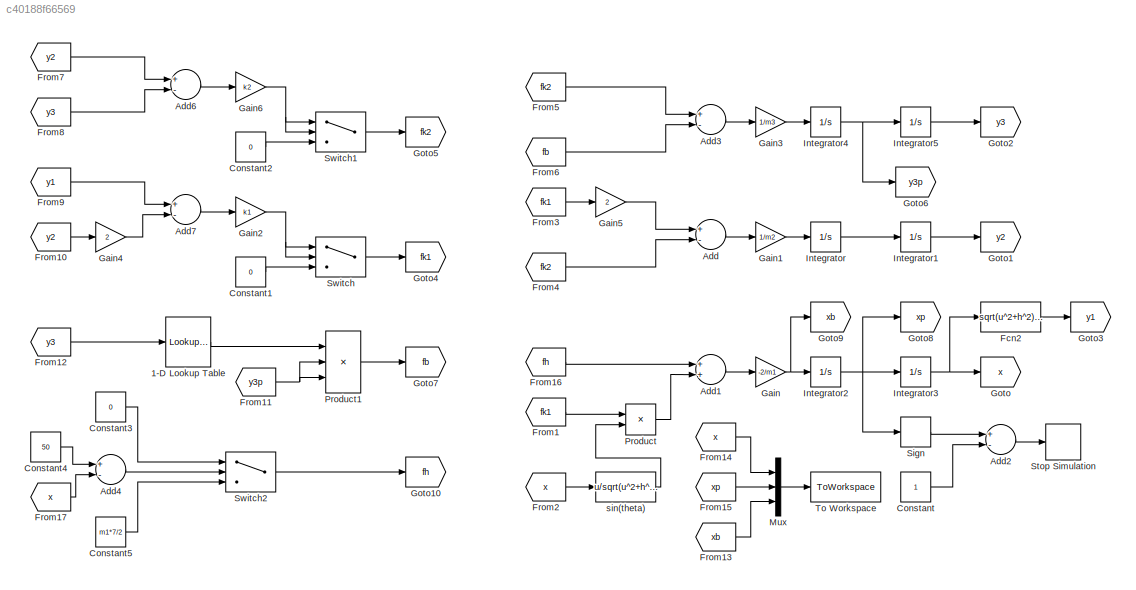
MODEL slx_c40188f66569
KIND model
BLOCK [Lookup_n-D] 1-D Lookup Table
  BreakpointsForDimension1 = [0 10 20 30 40 50 60 70 80 90 94 98 102 104 107 120]
  NumberOfTableDimensions = 1
  Ports = [1, 1]
  RndMeth = Simplest
  Table = [833 400 160 320 520 520 660 830 1070 1600 2100 2800 4100 5000 9000 9000]
BLOCK [Sum] Add
  InputSameDT = off
  Inputs = +-
  OutDataTypeStr = Inherit: Inherit via internal rule
  Ports = [2, 1]
  SaturateOnIntegerOverflow = off
BLOCK [Sum] Add1
  InputSameDT = off
  OutDataTypeStr = Inherit: Inherit via internal rule
  Ports = [2, 1]
  SaturateOnIntegerOverflow = off
BLOCK [Sum] Add2
  InputSameDT = off
  Inputs = +-
  OutDataTypeStr = Inherit: Inherit via internal rule
  Ports = [2, 1]
  SaturateOnIntegerOverflow = off
BLOCK [Sum] Add3
  InputSameDT = off
  Inputs = +-
  OutDataTypeStr = Inherit: Inherit via internal rule
  Ports = [2, 1]
  SaturateOnIntegerOverflow = off
BLOCK [Sum] Add4
  InputSameDT = off
  Inputs = +-
  OutDataTypeStr = Inherit: Inherit via internal rule
  Ports = [2, 1]
  SaturateOnIntegerOverflow = off
BLOCK [Sum] Add6
  InputSameDT = off
  Inputs = +-
  OutDataTypeStr = Inherit: Inherit via internal rule
  Ports = [2, 1]
  SaturateOnIntegerOverflow = off
BLOCK [Sum] Add7
  InputSameDT = off
  Inputs = +-
  OutDataTypeStr = Inherit: Inherit via internal rule
  Ports = [2, 1]
  SaturateOnIntegerOverflow = off
BLOCK [Constant] Constant
BLOCK [Constant] Constant1
  Value = 0
BLOCK [Constant] Constant2
  Value = 0
BLOCK [Constant] Constant3
  Value = 0
BLOCK [Constant] Constant4
  Value = 50
BLOCK [Constant] Constant5
  Value = m1*7/2
BLOCK [Fcn] Fcn2
  Expr = sqrt(u^2+h^2)-h
BLOCK [From] From1
  GotoTag = fk1
BLOCK [From] From10
  GotoTag = y2
BLOCK [From] From11
  GotoTag = y3p
BLOCK [From] From12
  GotoTag = y3
BLOCK [From] From13
  GotoTag = xb
BLOCK [From] From14
  GotoTag = x
BLOCK [From] From15
  GotoTag = xp
BLOCK [From] From16
  GotoTag = fh
BLOCK [From] From17
  GotoTag = x
BLOCK [From] From2
  GotoTag = x
BLOCK [From] From3
  GotoTag = fk1
BLOCK [From] From4
  GotoTag = fk2
BLOCK [From] From5
  GotoTag = fk2
BLOCK [From] From6
  GotoTag = fb
BLOCK [From] From7
  GotoTag = y2
BLOCK [From] From8
  GotoTag = y3
BLOCK [From] From9
  GotoTag = y1
BLOCK [Gain] Gain
  Gain = -2/m1
  OutDataTypeStr = Inherit: Inherit via internal rule
  ParamDataTypeStr = Inherit: Inherit via internal rule
  SaturateOnIntegerOverflow = off
BLOCK [Gain] Gain1
  Gain = 1/m2
  OutDataTypeStr = Inherit: Inherit via internal rule
  ParamDataTypeStr = Inherit: Inherit via internal rule
  SaturateOnIntegerOverflow = off
BLOCK [Gain] Gain2
  Gain = k1
  OutDataTypeStr = Inherit: Inherit via internal rule
  ParamDataTypeStr = Inherit: Inherit via internal rule
  SaturateOnIntegerOverflow = off
BLOCK [Gain] Gain3
  Gain = 1/m3
  OutDataTypeStr = Inherit: Inherit via internal rule
  ParamDataTypeStr = Inherit: Inherit via internal rule
  SaturateOnIntegerOverflow = off
BLOCK [Gain] Gain4
  Gain = 2
  OutDataTypeStr = Inherit: Inherit via internal rule
  ParamDataTypeStr = Inherit: Inherit via internal rule
  SaturateOnIntegerOverflow = off
BLOCK [Gain] Gain5
  Gain = 2
  OutDataTypeStr = Inherit: Inherit via internal rule
  ParamDataTypeStr = Inherit: Inherit via internal rule
  SaturateOnIntegerOverflow = off
BLOCK [Gain] Gain6
  Gain = k2
  OutDataTypeStr = Inherit: Inherit via internal rule
  ParamDataTypeStr = Inherit: Inherit via internal rule
  SaturateOnIntegerOverflow = off
BLOCK [Goto] Goto
  GotoTag = x
BLOCK [Goto] Goto1
  GotoTag = y2
BLOCK [Goto] Goto10
  GotoTag = fh
BLOCK [Goto] Goto2
  GotoTag = y3
BLOCK [Goto] Goto3
  GotoTag = y1
BLOCK [Goto] Goto4
  GotoTag = fk1
BLOCK [Goto] Goto5
  GotoTag = fk2
BLOCK [Goto] Goto6
  GotoTag = y3p
BLOCK [Goto] Goto7
  GotoTag = fb
BLOCK [Goto] Goto8
  GotoTag = xp
BLOCK [Goto] Goto9
  GotoTag = xb
BLOCK [Integrator] Integrator
  Ports = [1, 1]
BLOCK [Integrator] Integrator1
  Ports = [1, 1]
BLOCK [Integrator] Integrator2
  InitialCondition = v0
  Ports = [1, 1]
BLOCK [Integrator] Integrator3
  Ports = [1, 1]
BLOCK [Integrator] Integrator4
  Ports = [1, 1]
BLOCK [Integrator] Integrator5
  Ports = [1, 1]
BLOCK [Mux] Mux
  DisplayOption = bar
  Inputs = 3
  Ports = [3, 1]
BLOCK [Product] Product
  InputSameDT = off
  OutDataTypeStr = Inherit: Inherit via internal rule
  Ports = [2, 1]
  SaturateOnIntegerOverflow = off
BLOCK [Product] Product1
  InputSameDT = off
  Inputs = 3
  OutDataTypeStr = Inherit: Inherit via internal rule
  Ports = [3, 1]
  SaturateOnIntegerOverflow = off
BLOCK [Signum] Sign
BLOCK [Stop] Stop Simulation
BLOCK [Switch] Switch
  InputSameDT = off
  SaturateOnIntegerOverflow = off
BLOCK [Switch] Switch1
  InputSameDT = off
  SaturateOnIntegerOverflow = off
BLOCK [Switch] Switch2
  InputSameDT = off
  SaturateOnIntegerOverflow = off
BLOCK [ToWorkspace] To Workspace
  MaxDataPoints = inf
  Ports = [1]
  SampleTime = -1
  VariableName = zad_hamsam
BLOCK [Fcn] sin(theta)
  Expr = u/sqrt(u^2+h^2)
LINE 1-D Lookup Table:1 -> Product1:1
LINE Add1:1 -> Gain:1
LINE Add2:1 -> Stop Simulation:1
LINE Add3:1 -> Gain3:1
LINE Add4:1 -> Switch2:2
LINE Add6:1 -> Gain6:1
LINE Add7:1 -> Gain2:1
LINE Add:1 -> Gain1:1
LINE Constant1:1 -> Switch:3
LINE Constant2:1 -> Switch1:3
LINE Constant3:1 -> Switch2:1
LINE Constant4:1 -> Add4:1
LINE Constant5:1 -> Switch2:3
LINE Constant:1 -> Add2:2
LINE Fcn2:1 -> Goto3:1
LINE From10:1 -> Gain4:1
NET From11:1 -> Product1:2, Product1:3
LINE From12:1 -> 1-D Lookup Table:1
LINE From13:1 -> Mux:3
LINE From14:1 -> Mux:1
LINE From15:1 -> Mux:2
LINE From16:1 -> Add1:1
LINE From17:1 -> Add4:2
LINE From1:1 -> Product:1
LINE From2:1 -> sin(theta):1
LINE From3:1 -> Gain5:1
LINE From4:1 -> Add:2
LINE From5:1 -> Add3:1
LINE From6:1 -> Add3:2
LINE From7:1 -> Add6:1
LINE From8:1 -> Add6:2
LINE From9:1 -> Add7:1
LINE Gain1:1 -> Integrator:1
NET Gain2:1 -> Switch:1, Switch:2
LINE Gain3:1 -> Integrator4:1
LINE Gain4:1 -> Add7:2
LINE Gain5:1 -> Add:1
NET Gain6:1 -> Switch1:1, Switch1:2
NET Gain:1 -> Goto9:1, Integrator2:1
LINE Integrator1:1 -> Goto1:1
NET Integrator2:1 -> Goto8:1, Integrator3:1, Sign:1
NET Integrator3:1 -> Fcn2:1, Goto:1
NET Integrator4:1 -> Goto6:1, Integrator5:1
LINE Integrator5:1 -> Goto2:1
LINE Integrator:1 -> Integrator1:1
LINE Mux:1 -> To Workspace:1
LINE Product1:1 -> Goto7:1
LINE Product:1 -> Add1:2
LINE Sign:1 -> Add2:1
LINE Switch1:1 -> Goto5:1
LINE Switch2:1 -> Goto10:1
LINE Switch:1 -> Goto4:1
LINE sin(theta):1 -> Product:2
note: NET lines group one-source signal fan-out (src -> all destinations, sorted); 1:1 wires keep LINE
